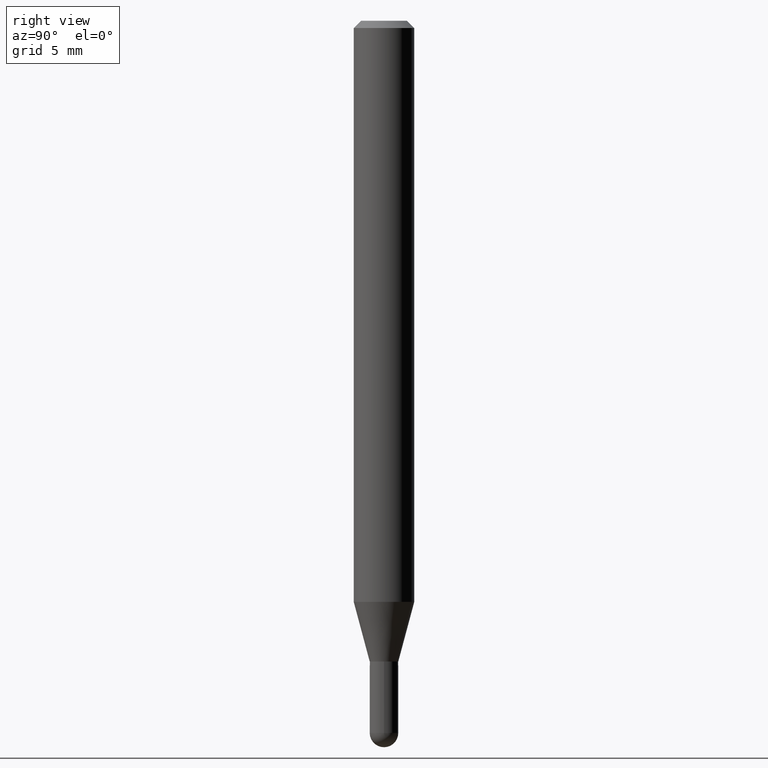
[diagram: clean part render]
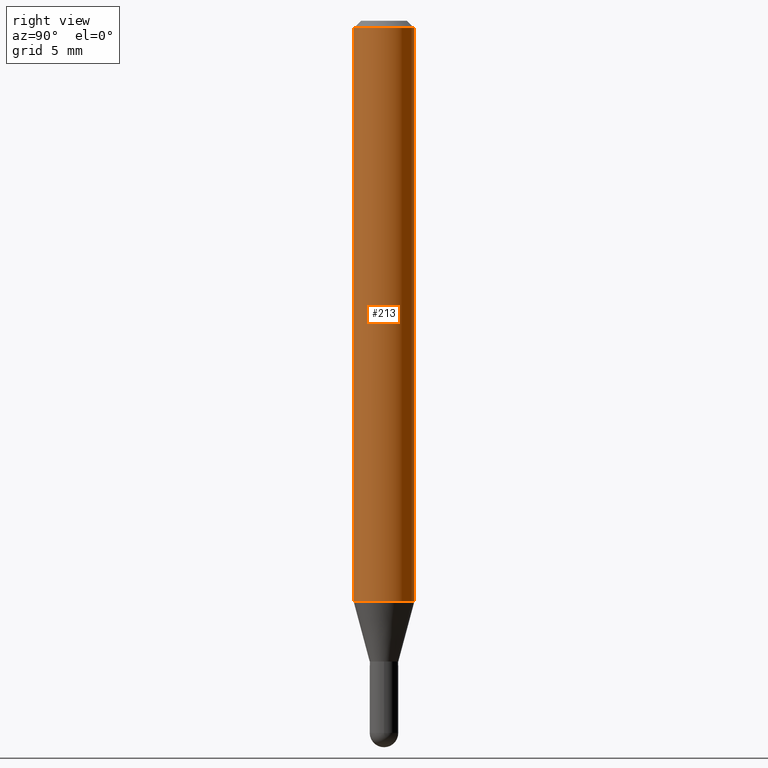
[diagram: same view with one face highlighted and labeled with its STEP entity id]
A machine part, right view. The second image highlights one B-rep face of the part: STEP entity #213.
In plain terms, the highlighted cylindrical surface (edge-blend (fillet) strip) has radius 1.5875 mm, axis along (-0, 0, 1).
Its self-contained STEP definition (entity closure, byte-faithful):
#6 = CARTESIAN_POINT ( 'NONE',  ( -4.364351673553912750E-16, -0.06250000000000005551, -0.01499999999999979128 ) ) ;
#25 = LINE ( 'NONE', #91, #141 ) ;
#28 = DIRECTION ( 'NONE',  ( -2.445485998006059761E-29, 3.491456719177085880E-15, 1.000000000000000000 ) ) ;
#53 = VERTEX_POINT ( 'NONE', #6 ) ;
#54 = CARTESIAN_POINT ( 'NONE',  ( 4.440892098500917054E-16, 0.06249999999999578115, -1.199842323350231998 ) ) ;
#61 = CYLINDRICAL_SURFACE ( 'NONE', #371, 0.06250000000000000000 ) ;
#65 = CARTESIAN_POINT ( 'NONE',  ( 4.440892098500920998E-16, 0.06249999999999995143, -0.01500000000000022669 ) ) ;
#91 = CARTESIAN_POINT ( 'NONE',  ( 4.440892098500625669E-16, 0.06250000000000000000, -2.182160449485678675E-16 ) ) ;
#97 = AXIS2_PLACEMENT_3D ( 'NONE', #221, #28, #103 ) ;
#100 = ORIENTED_EDGE ( 'NONE', *, *, #373, .F. ) ;
#103 = DIRECTION ( 'NONE',  ( -6.982962677686265922E-15, -1.000000000000000000, 3.483106191921935554E-15 ) ) ;
#111 = ORIENTED_EDGE ( 'NONE', *, *, #364, .F. ) ;
#131 = DIRECTION ( 'NONE',  ( -6.982962677686265922E-15, -1.000000000000000000, 4.370956789862821150E-15 ) ) ;
#136 = VERTEX_POINT ( 'NONE', #54 ) ;
#137 = DIRECTION ( 'NONE',  ( -2.445485998006059761E-29, 3.491456719177085880E-15, 1.000000000000000000 ) ) ;
#141 = VECTOR ( 'NONE', #493, 39.37007874015748143 ) ;
#166 = EDGE_LOOP ( 'NONE', ( #455, #366, #100, #111 ) ) ;
#168 = DIRECTION ( 'NONE',  ( -2.445485998006059761E-29, 3.491456719177085880E-15, 1.000000000000000000 ) ) ;
#213 = ADVANCED_FACE ( 'NONE', ( #494 ), #61, .T. ) ;
#220 = CIRCLE ( 'NONE', #264, 0.06250000000000000000 ) ;
#221 = CARTESIAN_POINT ( 'NONE',  ( 3.668228997009091848E-31, -5.237185078765632149E-17, -0.01500000000000000812 ) ) ;
#252 = VERTEX_POINT ( 'NONE', #267 ) ;
#257 = EDGE_CURVE ( 'NONE', #252, #136, #220, .T. ) ;
#259 = DIRECTION ( 'NONE',  ( -2.445485998006060041E-29, 3.491456719177085486E-15, 1.000000000000000000 ) ) ;
#264 = AXIS2_PLACEMENT_3D ( 'NONE', #419, #168, #131 ) ;
#267 = CARTESIAN_POINT ( 'NONE',  ( -4.364351673553624323E-16, -0.06250000000000421885, -1.199842323350231554 ) ) ;
#318 = VERTEX_POINT ( 'NONE', #65 ) ;
#327 = VECTOR ( 'NONE', #259, 39.37007874015748143 ) ;
#329 = LINE ( 'NONE', #349, #327 ) ;
#349 = CARTESIAN_POINT ( 'NONE',  ( -4.364351673553916201E-16, -0.06250000000000000000, 2.182160449485678675E-16 ) ) ;
#364 = EDGE_CURVE ( 'NONE', #252, #53, #329, .T. ) ;
#366 = ORIENTED_EDGE ( 'NONE', *, *, #503, .T. ) ;
#371 = AXIS2_PLACEMENT_3D ( 'NONE', #375, #137, #417 ) ;
#373 = EDGE_CURVE ( 'NONE', #53, #318, #383, .T. ) ;
#375 = CARTESIAN_POINT ( 'NONE',  ( 0.000000000000000000, 0.000000000000000000, 0.000000000000000000 ) ) ;
#383 = CIRCLE ( 'NONE', #97, 0.06250000000000000000 ) ;
#417 = DIRECTION ( 'NONE',  ( -6.982962677686265922E-15, -1.000000000000000000, 3.491456719177085880E-15 ) ) ;
#419 = CARTESIAN_POINT ( 'NONE',  ( 2.934197601568051168E-29, -4.189197541814212806E-15, -1.199842323350231776 ) ) ;
#455 = ORIENTED_EDGE ( 'NONE', *, *, #257, .T. ) ;
#493 = DIRECTION ( 'NONE',  ( -2.445485998006060041E-29, 3.491456719177085486E-15, 1.000000000000000000 ) ) ;
#494 = FACE_OUTER_BOUND ( 'NONE', #166, .T. ) ;
#503 = EDGE_CURVE ( 'NONE', #136, #318, #25, .T. ) ;